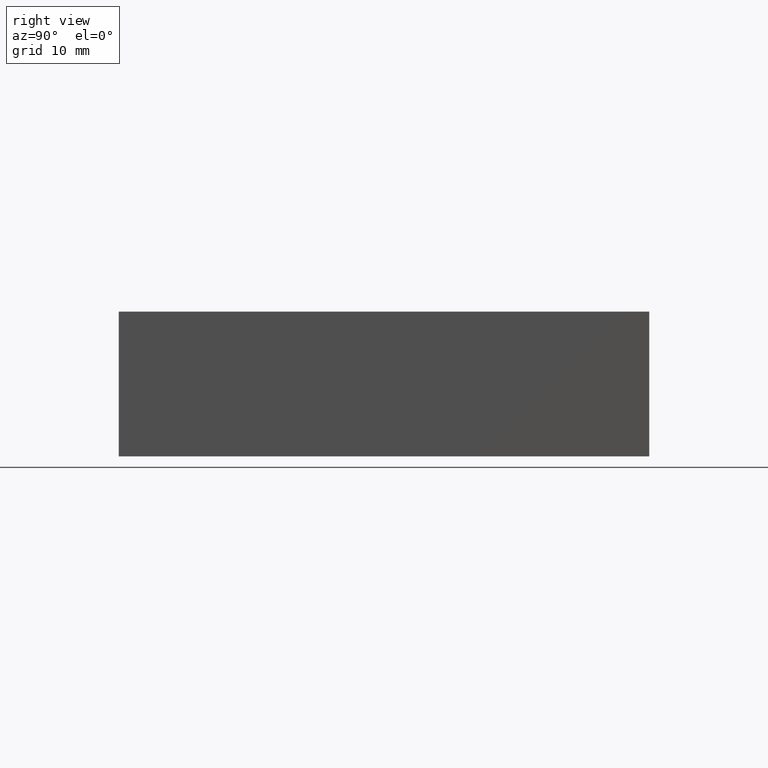
[diagram: clean part render]
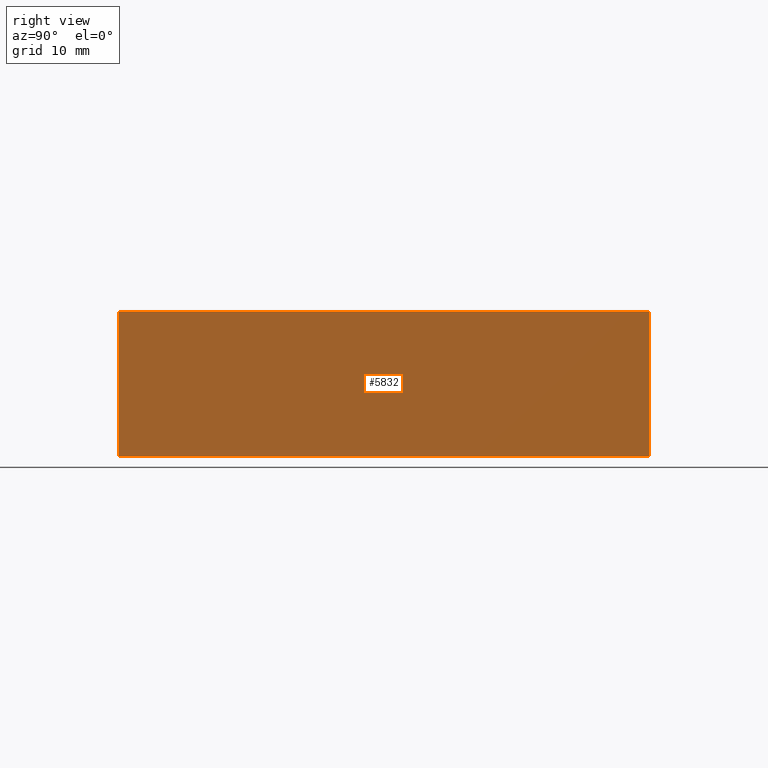
[diagram: same view with one face highlighted and labeled with its STEP entity id]
A machine part, right view. The second image highlights one B-rep face of the part: STEP entity #5832.
In plain terms, the highlighted planar face has unit normal (1, 0, 0).
Its self-contained STEP definition (entity closure, byte-faithful):
#295=PLANE('',#6095);
#585=FACE_OUTER_BOUND('',#898,.T.);
#898=EDGE_LOOP('',(#5172,#5173,#5174,#5175));
#1134=LINE('',#8769,#1750);
#1528=LINE('',#9776,#2144);
#1529=LINE('',#9778,#2145);
#1530=LINE('',#9779,#2146);
#1750=VECTOR('',#6438,10.);
#2144=VECTOR('',#7204,10.);
#2145=VECTOR('',#7207,10.);
#2146=VECTOR('',#7208,10.);
#2526=VERTEX_POINT('',#8766);
#2527=VERTEX_POINT('',#8768);
#2825=VERTEX_POINT('',#9772);
#2826=VERTEX_POINT('',#9774);
#3176=EDGE_CURVE('',#2526,#2527,#1134,.T.);
#3618=EDGE_CURVE('',#2825,#2826,#1528,.T.);
#3619=EDGE_CURVE('',#2526,#2825,#1529,.T.);
#3620=EDGE_CURVE('',#2527,#2826,#1530,.T.);
#5172=ORIENTED_EDGE('',*,*,#3619,.T.);
#5173=ORIENTED_EDGE('',*,*,#3618,.T.);
#5174=ORIENTED_EDGE('',*,*,#3620,.F.);
#5175=ORIENTED_EDGE('',*,*,#3176,.F.);
#5832=ADVANCED_FACE('',(#585),#295,.T.);
#6095=AXIS2_PLACEMENT_3D('',#9777,#7205,#7206);
#6438=DIRECTION('',(0.,0.,1.));
#7204=DIRECTION('',(0.,0.,1.));
#7205=DIRECTION('center_axis',(1.,0.,0.));
#7206=DIRECTION('ref_axis',(0.,1.,0.));
#7207=DIRECTION('',(0.,1.,0.));
#7208=DIRECTION('',(0.,1.,0.));
#8766=CARTESIAN_POINT('',(63.5,0.,0.));
#8768=CARTESIAN_POINT('',(63.5,0.,19.05));
#8769=CARTESIAN_POINT('',(63.5,0.,0.));
#9772=CARTESIAN_POINT('',(63.5,69.85,0.));
#9774=CARTESIAN_POINT('',(63.5,69.85,19.05));
#9776=CARTESIAN_POINT('',(63.5,69.85,0.));
#9777=CARTESIAN_POINT('Origin',(63.5,0.,0.));
#9778=CARTESIAN_POINT('',(63.5,0.,0.));
#9779=CARTESIAN_POINT('',(63.5,0.,19.05));